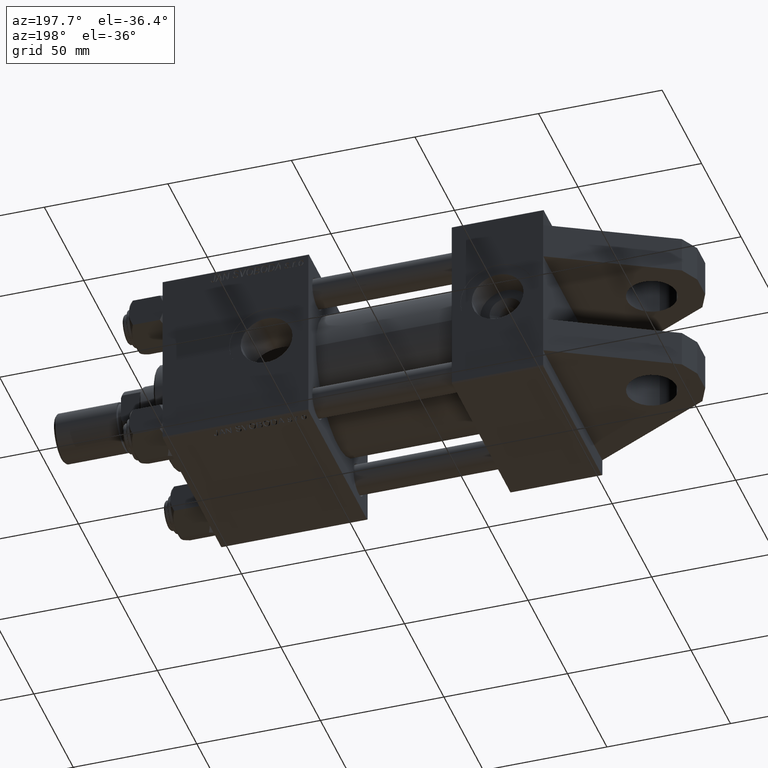
[diagram: clean part render]
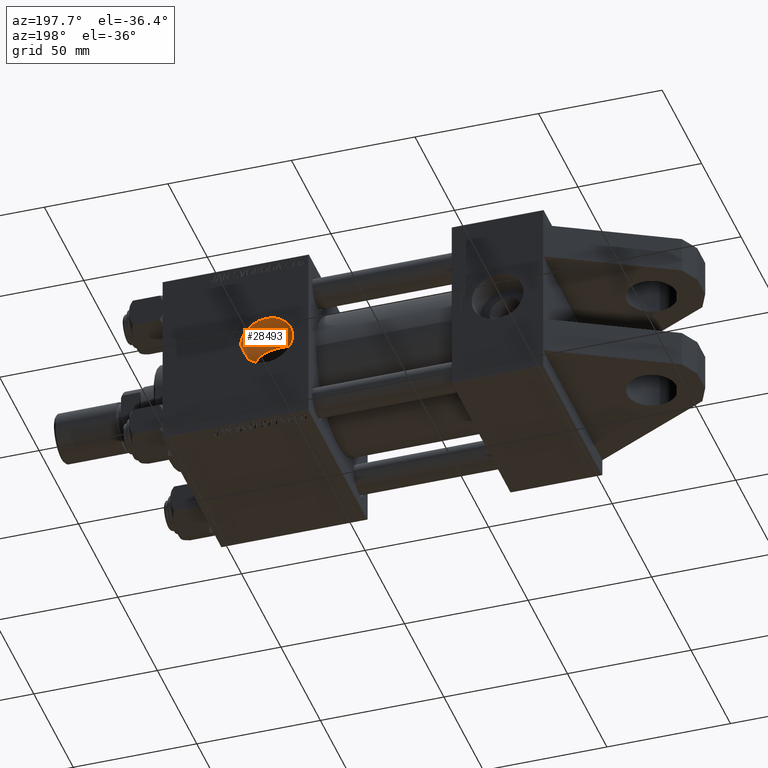
[diagram: same view with one face highlighted and labeled with its STEP entity id]
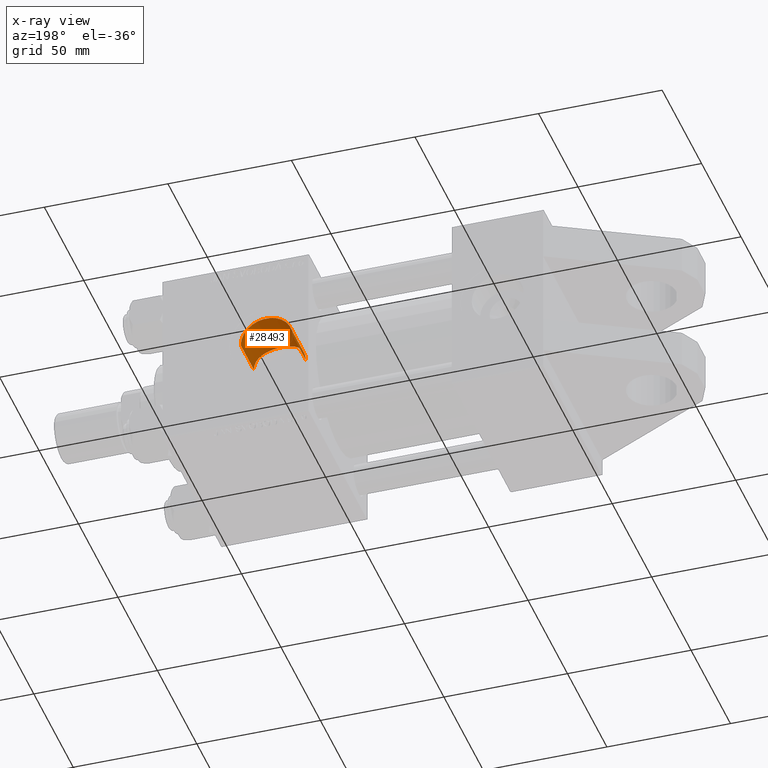
[diagram: x-ray of the same camera — body ghosted, the highlighted face saturated]
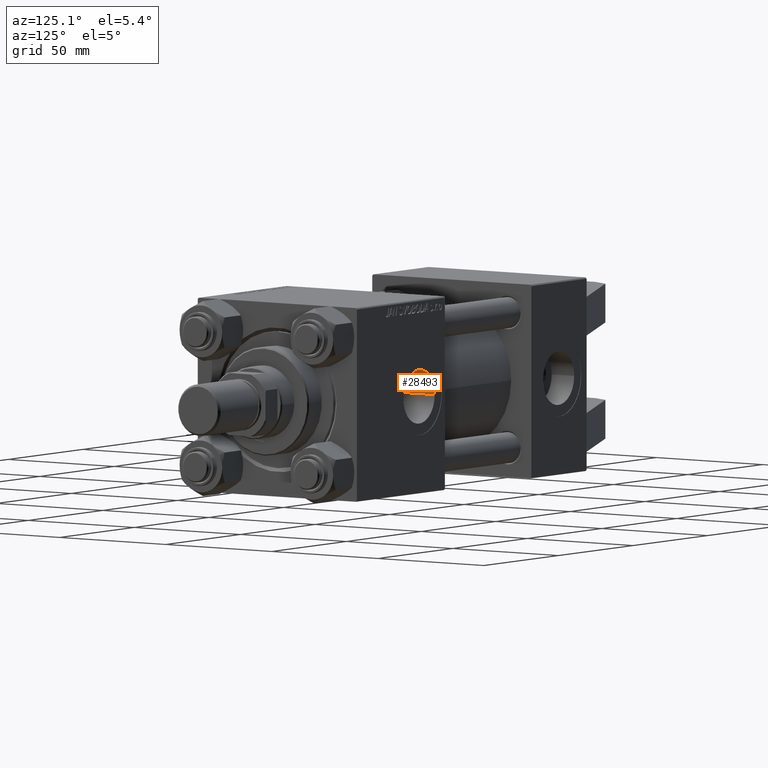
[diagram: same view with one face highlighted and labeled with its STEP entity id]
A machine part, auxiliary view. The second image highlights one B-rep face of the part: STEP entity #28493.
The next image is the same camera in x-ray: the body ghosted, the highlighted face saturated — about 0% of this face is hidden behind the body in this view.
A second angle (auxiliary view) of the same face is appended — the face is thin or edge-on in the first view.
In plain terms, the highlighted cylindrical surface (edge-blend (fillet) strip) has radius 10.48 mm, axis along (0, 1, 0).
Its self-contained STEP definition (entity closure, byte-faithful):
#599 = CARTESIAN_POINT ( 'NONE',  ( 106.4370713102759254, -8.888126011188646203, 18.47416199026498873 ) ) ;
#862 = CARTESIAN_POINT ( 'NONE',  ( 121.3960631885490500, -4.691680676969852470, 19.96626219164003047 ) ) ;
#1262 = ORIENTED_EDGE ( 'NONE', *, *, #9981, .T. ) ;
#3300 = DIRECTION ( 'NONE',  ( -0.000000000000000000, -0.000000000000000000, 1.000000000000000000 ) ) ;
#3313 = CARTESIAN_POINT ( 'NONE',  ( 112.6814791988799414, -10.46366126333136393, 17.62848217895582792 ) ) ;
#3575 = CARTESIAN_POINT ( 'NONE',  ( 116.6690853224107514, -9.388600178004816499, 18.22462129881091286 ) ) ;
#4786 = CARTESIAN_POINT ( 'NONE',  ( 108.5745719275266339, -9.927621080817951693, 17.93825228815606110 ) ) ;
#5049 = CARTESIAN_POINT ( 'NONE',  ( 112.3341088846438822, -10.48041361291828721, 17.61848264586092583 ) ) ;
#5108 = VERTEX_POINT ( 'NONE', #24140 ) ;
#6899 = CYLINDRICAL_SURFACE ( 'NONE', #10656, 10.48000000000000398 ) ;
#7249 = CARTESIAN_POINT ( 'NONE',  ( 103.6878378574865280, -6.418439821813778146, 19.47810485895406174 ) ) ;
#7413 = DIRECTION ( 'NONE',  ( -0.000000000000000000, -0.000000000000000000, 1.000000000000000000 ) ) ;
#7519 = CARTESIAN_POINT ( 'NONE',  ( 107.6354868591777318, -9.533972387970671036, 18.14870544625352267 ) ) ;
#7781 = CARTESIAN_POINT ( 'NONE',  ( 122.3914512970506934, -1.404195912787439937, 20.45485109438924809 ) ) ;
#8731 = CARTESIAN_POINT ( 'NONE',  ( 122.4622000827459800, -0.7045535104270161941, 20.49088343156710224 ) ) ;
#9222 = CARTESIAN_POINT ( 'NONE',  ( 122.4800000000000040, -6.938893903907226011E-15, 37.29999999999998295 ) ) ;
#9890 = EDGE_CURVE ( 'NONE', #51832, #5108, #45532, .T. ) ;
#9981 = EDGE_CURVE ( 'NONE', #5108, #44629, #22414, .T. ) ;
#10656 = AXIS2_PLACEMENT_3D ( 'NONE', #39678, #7413, #19487 ) ;
#10856 = VECTOR ( 'NONE', #3300, 1000.000000000000000 ) ;
#10867 = EDGE_CURVE ( 'NONE', #51832, #27030, #50796, .T. ) ;
#11449 = CARTESIAN_POINT ( 'NONE',  ( 122.4800000000000182, -0.3522970392101433257, 20.49999999999999645 ) ) ;
#12379 = VECTOR ( 'NONE', #22440, 1000.000000000000000 ) ;
#12679 = CARTESIAN_POINT ( 'NONE',  ( 122.3381309979508700, -1.753420589756566228, 20.42774937413482661 ) ) ;
#14260 = EDGE_CURVE ( 'NONE', #27030, #44629, #34278, .T. ) ;
#15122 = CARTESIAN_POINT ( 'NONE',  ( 109.2280793968160850, -10.13091671386764325, 17.82246880807402079 ) ) ;
#15378 = CARTESIAN_POINT ( 'NONE',  ( 102.9313551319551152, -5.296044702130333626, 19.81274461440645140 ) ) ;
#15639 = CARTESIAN_POINT ( 'NONE',  ( 122.1295581069688865, -2.776075960603468396, 20.32272411093433817 ) ) ;
#16613 = CARTESIAN_POINT ( 'NONE',  ( 105.5941937745347587, -8.321915944822148248, 18.73951696123976518 ) ) ;
#16874 = CARTESIAN_POINT ( 'NONE',  ( 122.4800000000000040, -8.064784466913145521E-15, 20.50000000000000000 ) ) ;
#19330 = CARTESIAN_POINT ( 'NONE',  ( 101.5373194281835936, -0.6975477180843276948, 20.49112900659146774 ) ) ;
#19395 = EDGE_LOOP ( 'NONE', ( #28596, #43578, #1262, #37259 ) ) ;
#19487 = DIRECTION ( 'NONE',  ( 1.000000000000000000, 0.000000000000000000, 0.000000000000000000 ) ) ;
#19586 = CARTESIAN_POINT ( 'NONE',  ( 113.7266884739282347, -10.34262317724383351, 17.69989916064850632 ) ) ;
#20546 = CARTESIAN_POINT ( 'NONE',  ( 119.8804788410660223, -6.941452010564971076, 19.29579377263343787 ) ) ;
#20801 = CARTESIAN_POINT ( 'NONE',  ( 110.6025602051608274, -10.39222505413974318, 17.67069039822370868 ) ) ;
#21060 = CARTESIAN_POINT ( 'NONE',  ( 115.4063512443092492, -9.934775369653646493, 17.93434123160426452 ) ) ;
#22414 = CIRCLE ( 'NONE', #48359, 10.48000000000000398 ) ;
#22440 = DIRECTION ( 'NONE',  ( -0.000000000000000000, -0.000000000000000000, 1.000000000000000000 ) ) ;
#22713 = DIRECTION ( 'NONE',  ( 1.000000000000000000, 0.000000000000000000, 0.000000000000000000 ) ) ;
#23250 = CARTESIAN_POINT ( 'NONE',  ( 117.5578234370811401, -8.891274561716755898, 18.47263655462108645 ) ) ;
#23413 = FACE_OUTER_BOUND ( 'NONE', #19395, .T. ) ;
#23512 = CARTESIAN_POINT ( 'NONE',  ( 110.2555977788672692, -10.33971059625591771, 17.70160590893370056 ) ) ;
#24140 = CARTESIAN_POINT ( 'NONE',  ( 101.5199999999999960, -5.655464058400800522E-15, 37.29999999999998295 ) ) ;
#27030 = VERTEX_POINT ( 'NONE', #46995 ) ;
#27179 = CARTESIAN_POINT ( 'NONE',  ( 107.3293817418598479, -9.387829422307126137, 18.22501757978348991 ) ) ;
#27445 = CARTESIAN_POINT ( 'NONE',  ( 101.5199999999999960, 2.510525976792046767E-15, 20.50000000000000000 ) ) ;
#27714 = CARTESIAN_POINT ( 'NONE',  ( 118.3886883019841889, -8.314410140588083920, 18.73966773247921580 ) ) ;
#28493 = ADVANCED_FACE ( 'NONE', ( #23413 ), #6899, .F. ) ;
#28596 = ORIENTED_EDGE ( 'NONE', *, *, #10867, .F. ) ;
#31105 = CARTESIAN_POINT ( 'NONE',  ( 112.0000000000000000, -6.938893903907226011E-15, 37.29999999999998295 ) ) ;
#31135 = CARTESIAN_POINT ( 'NONE',  ( 119.1640514013419789, -7.656408636808564872, 19.01827437279594690 ) ) ;
#31387 = CARTESIAN_POINT ( 'NONE',  ( 106.7306687338671765, -9.065327582793809569, 18.38756217834191986 ) ) ;
#31626 = DIRECTION ( 'NONE',  ( 0.000000000000000000, 0.000000000000000000, 1.000000000000000000 ) ) ;
#31656 = CARTESIAN_POINT ( 'NONE',  ( 102.6065223597661742, -4.698176869313511972, 19.96501099493542597 ) ) ;
#32617 = CARTESIAN_POINT ( 'NONE',  ( 111.2941187593587529, -10.46197453782987630, 17.62948466335770803 ) ) ;
#33736 = CARTESIAN_POINT ( 'NONE',  ( 101.5199999999999960, -5.655464058400799734E-15, -29.64191626734007201 ) ) ;
#34278 = LINE ( 'NONE', #39246, #10856 ) ;
#35334 = CARTESIAN_POINT ( 'NONE',  ( 117.2682450002125023, -9.065967442480708627, 18.38724745902399604 ) ) ;
#35589 = CARTESIAN_POINT ( 'NONE',  ( 120.3080639857367515, -6.423734119180503299, 19.47635096710018843 ) ) ;
#36804 = CARTESIAN_POINT ( 'NONE',  ( 114.7493377519944886, -10.13682253052156135, 17.81908995765660109 ) ) ;
#37259 = ORIENTED_EDGE ( 'NONE', *, *, #14260, .F. ) ;
#39246 = CARTESIAN_POINT ( 'NONE',  ( 122.4800000000000040, -6.938893903907226011E-15, -29.64191626734007201 ) ) ;
#39256 = CARTESIAN_POINT ( 'NONE',  ( 121.9259961966456984, -3.431103397164400715, 20.22105395269823802 ) ) ;
#39520 = CARTESIAN_POINT ( 'NONE',  ( 111.6404286496411089, -10.47957092101780852, 17.61898389668663967 ) ) ;
#39678 = CARTESIAN_POINT ( 'NONE',  ( 112.0000000000000000, -6.938893903907226011E-15, -29.64191626734007201 ) ) ;
#39775 = CARTESIAN_POINT ( 'NONE',  ( 116.3578023003661741, -9.537195956998811397, 18.14702406848240912 ) ) ;
#40733 = CARTESIAN_POINT ( 'NONE',  ( 101.8666648715252592, -2.761576805218175057, 20.32461380113116789 ) ) ;
#40998 = CARTESIAN_POINT ( 'NONE',  ( 105.0765846006457735, -7.896134472041805630, 18.92512908471084643 ) ) ;
#43465 = CARTESIAN_POINT ( 'NONE',  ( 102.0698448522526007, -3.420863460384023558, 20.22306166505592273 ) ) ;
#43578 = ORIENTED_EDGE ( 'NONE', *, *, #9890, .T. ) ;
#43720 = CARTESIAN_POINT ( 'NONE',  ( 118.9114101887753350, -7.885249736585161706, 18.92425426011076794 ) ) ;
#44629 = VERTEX_POINT ( 'NONE', #9222 ) ;
#44684 = CARTESIAN_POINT ( 'NONE',  ( 101.6600944110725777, -1.742655798298272218, 20.42864921923913712 ) ) ;
#45532 = LINE ( 'NONE', #33736, #12379 ) ;
#46995 = CARTESIAN_POINT ( 'NONE',  ( 122.4800000000000040, -8.064784466913145521E-15, 20.50000000000000000 ) ) ;
#47114 = CARTESIAN_POINT ( 'NONE',  ( 104.1241723250916777, -6.946506951535431185, 19.29392369752211778 ) ) ;
#47367 = CARTESIAN_POINT ( 'NONE',  ( 101.6076873369817832, -1.397889509560947818, 20.45528894205207848 ) ) ;
#47638 = CARTESIAN_POINT ( 'NONE',  ( 113.3773002827958294, -10.39498267739094572, 17.66906692794632505 ) ) ;
#48359 = AXIS2_PLACEMENT_3D ( 'NONE', #31105, #31626, #22713 ) ;
#50116 = CARTESIAN_POINT ( 'NONE',  ( 101.5199999999999960, 2.510525976792046767E-15, 20.50000000000000000 ) ) ;
#50796 = B_SPLINE_CURVE_WITH_KNOTS ( 'NONE', 3,
 ( #27445, #51563, #19330, #47367, #44684, #40733, #43465, #31656, #15378, #7249, #47114, #40998, #16613, #599, #31387, #27179, #7519, #4786, #15122, #23512, #20801, #32617, #39520, #5049, #3313, #47638, #19586, #36804, #21060, #39775, #3575, #35334, #23250, #51049, #27714, #43720, #31135, #20546, #35589, #51305, #862, #39256, #15639, #12679, #7781, #8731, #11449, #16874 ),
 .UNSPECIFIED., .F., .F.,
 ( 4, 2, 2, 2, 2, 2, 2, 2, 2, 2, 2, 2, 2, 2, 2, 2, 2, 2, 2, 2, 2, 2, 2, 4 ),
 ( 0.03336594956818868252, 0.03440666335407151916, 0.03544737713995436273, 0.03752880471172003601, 0.03961023228348571623, 0.04169165985525138951, 0.04377308742701706973, 0.04481380121289992718, 0.04585451499878278464, 0.04793594257054849261, 0.04897665635643135007, 0.05001737014231420753, 0.05105808392819705804, 0.05209879771407990856, 0.05418022528584558184, 0.05522093907172841848, 0.05626165285761125512, 0.05730236664349408482, 0.05834308042937692146, 0.06042450800114261555, 0.06250593557290831659, 0.06458736314467400375, 0.06562807693055686120, 0.06666879071643971866 ),
 .UNSPECIFIED. ) ;
#51049 = CARTESIAN_POINT ( 'NONE',  ( 118.1180460980029636, -8.515496264593769737, 18.64884414591543660 ) ) ;
#51305 = CARTESIAN_POINT ( 'NONE',  ( 121.0651708556188311, -5.301977422005825780, 19.81114944782681775 ) ) ;
#51563 = CARTESIAN_POINT ( 'NONE',  ( 101.5199999999999960, -0.3477322343048998010, 20.50000000000001066 ) ) ;
#51832 = VERTEX_POINT ( 'NONE', #50116 ) ;